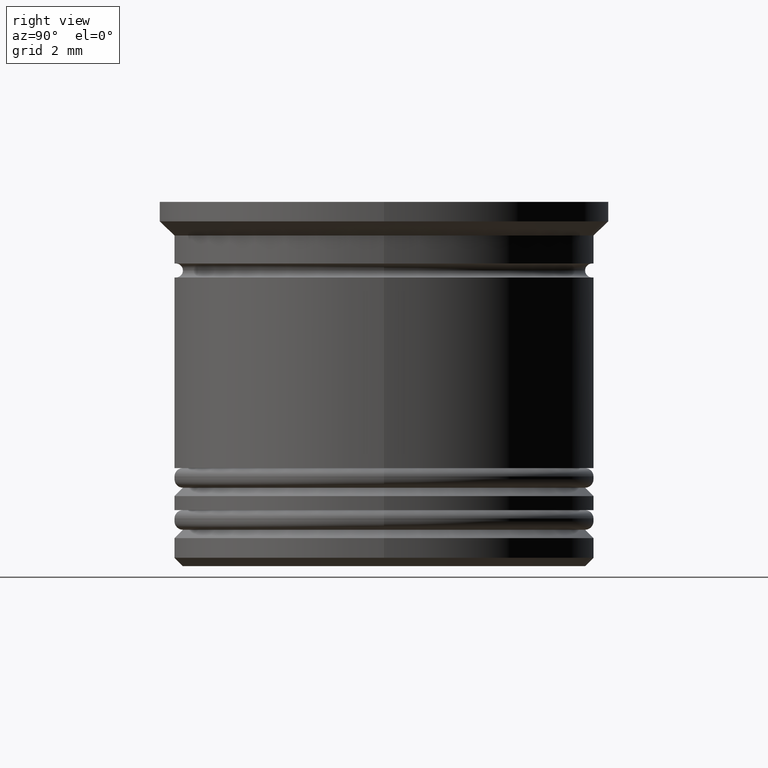
[diagram: clean part render]
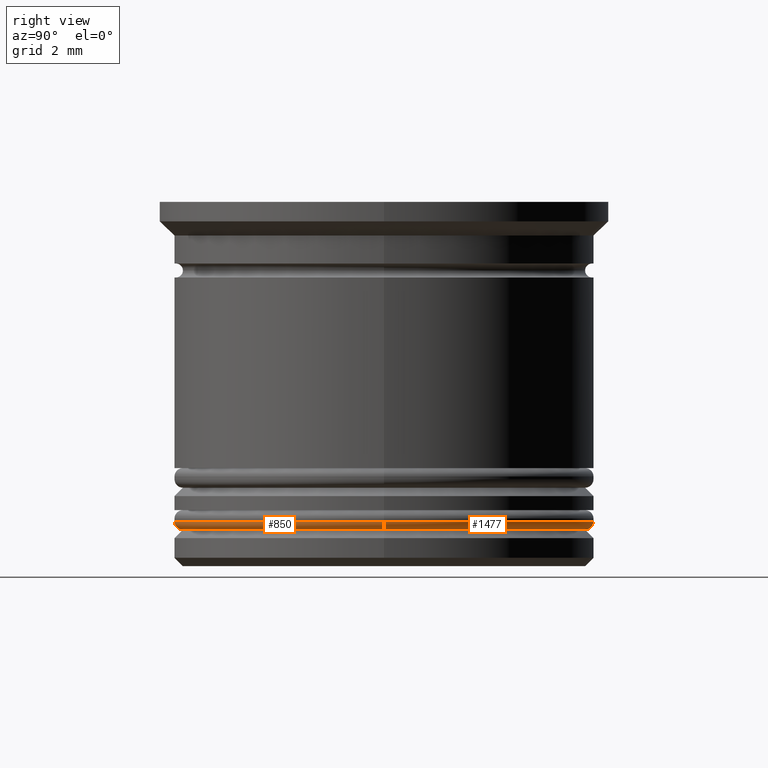
[diagram: same view with one multi-face feature highlighted, each face labeled with its STEP entity id]
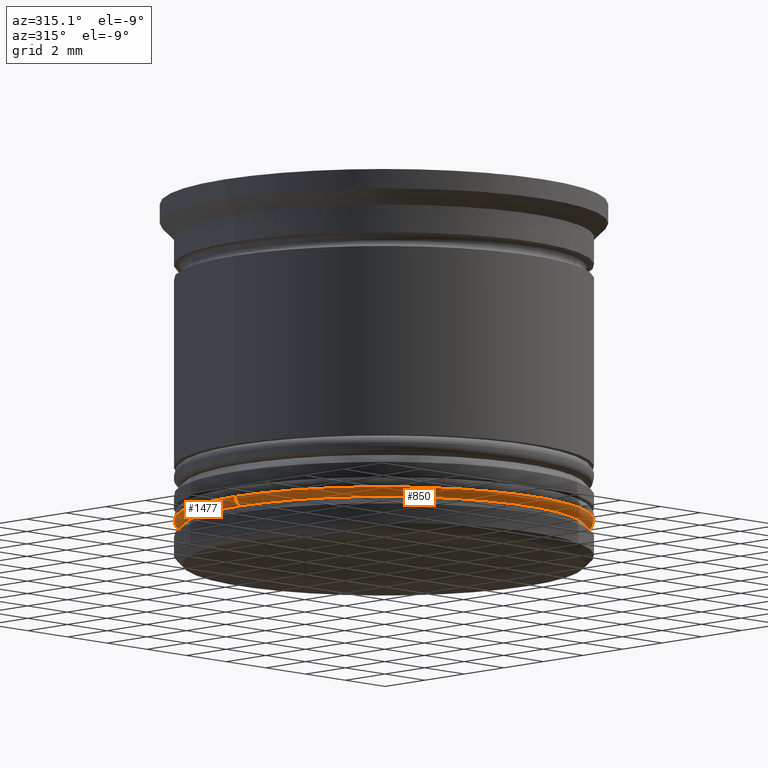
[diagram: same view with one multi-face feature highlighted, each face labeled with its STEP entity id]
A machine part, right view. The highlighted faces form ONE feature: a constant-radius fillet chain: 2 tangent blend faces with common blend radius 0.3 mm. The faces share edges in the B-rep.
A second angle (auxiliary view) of the same feature is appended — it is thin or edge-on in the first view.
Their STEP definitions:
[1] entity #850 (Torus):
#55 = CARTESIAN_POINT ( 'NONE',  ( 0.000000000000000000, 0.000000000000000000, -11.70000000000000462 ) ) ;
#61 = CARTESIAN_POINT ( 'NONE',  ( -7.200000000000001954, 8.817456953860946247E-16, -11.40000000000000391 ) ) ;
#168 = TOROIDAL_SURFACE ( 'NONE', #603, 7.200000000000001954, 0.2999999999999999889 ) ;
#398 = CARTESIAN_POINT ( 'NONE',  ( 7.200000000000001954, 0.000000000000000000, -11.70000000000000462 ) ) ;
#425 = DIRECTION ( 'NONE',  ( 0.000000000000000000, 0.000000000000000000, -1.000000000000000000 ) ) ;
#431 = CARTESIAN_POINT ( 'NONE',  ( 0.000000000000000000, 0.000000000000000000, -11.40000000000000391 ) ) ;
#470 = EDGE_CURVE ( 'NONE', #1738, #749, #1353, .T. ) ;
#508 = DIRECTION ( 'NONE',  ( -0.000000000000000000, -0.000000000000000000, -1.000000000000000000 ) ) ;
#554 = VERTEX_POINT ( 'NONE', #847 ) ;
#603 = AXIS2_PLACEMENT_3D ( 'NONE', #1043, #1659, #837 ) ;
#635 = AXIS2_PLACEMENT_3D ( 'NONE', #858, #1053, #425 ) ;
#679 = EDGE_LOOP ( 'NONE', ( #1794, #1521, #1863, #852 ) ) ;
#715 = EDGE_CURVE ( 'NONE', #841, #554, #1322, .T. ) ;
#749 = VERTEX_POINT ( 'NONE', #1128 ) ;
#804 = DIRECTION ( 'NONE',  ( -1.000000000000000000, 1.224646799147353207E-16, 0.000000000000000000 ) ) ;
#820 = DIRECTION ( 'NONE',  ( 1.000000000000000000, 0.000000000000000000, 0.000000000000000000 ) ) ;
#837 = DIRECTION ( 'NONE',  ( 1.000000000000000000, 0.000000000000000000, 0.000000000000000000 ) ) ;
#841 = VERTEX_POINT ( 'NONE', #891 ) ;
#847 = CARTESIAN_POINT ( 'NONE',  ( -7.500000000000001776, 9.184850993605149917E-16, -11.40000000000000391 ) ) ;
#850 = ADVANCED_FACE ( 'NONE', ( #1020 ), #168, .T. ) ;
#852 = ORIENTED_EDGE ( 'NONE', *, *, #1287, .F. ) ;
#858 = CARTESIAN_POINT ( 'NONE',  ( 7.200000000000001954, 0.000000000000000000, -11.40000000000000391 ) ) ;
#891 = CARTESIAN_POINT ( 'NONE',  ( -7.200000000000001954, 9.001153973733047589E-16, -11.70000000000000462 ) ) ;
#903 = EDGE_CURVE ( 'NONE', #1738, #841, #1799, .T. ) ;
#1020 = FACE_OUTER_BOUND ( 'NONE', #679, .T. ) ;
#1043 = CARTESIAN_POINT ( 'NONE',  ( 0.000000000000000000, 0.000000000000000000, -11.40000000000000391 ) ) ;
#1053 = DIRECTION ( 'NONE',  ( 0.000000000000000000, -1.000000000000000000, 0.000000000000000000 ) ) ;
#1068 = DIRECTION ( 'NONE',  ( 0.000000000000000000, 0.000000000000000000, 1.000000000000000000 ) ) ;
#1128 = CARTESIAN_POINT ( 'NONE',  ( 7.500000000000001776, 0.000000000000000000, -11.40000000000000391 ) ) ;
#1155 = DIRECTION ( 'NONE',  ( 1.224646799147353207E-16, 1.000000000000000000, -0.000000000000000000 ) ) ;
#1232 = AXIS2_PLACEMENT_3D ( 'NONE', #61, #1155, #804 ) ;
#1235 = CIRCLE ( 'NONE', #1260, 7.500000000000001776 ) ;
#1260 = AXIS2_PLACEMENT_3D ( 'NONE', #431, #1068, #1686 ) ;
#1287 = EDGE_CURVE ( 'NONE', #554, #749, #1235, .T. ) ;
#1322 = CIRCLE ( 'NONE', #1232, 0.2999999999999999334 ) ;
#1353 = CIRCLE ( 'NONE', #635, 0.2999999999999999334 ) ;
#1521 = ORIENTED_EDGE ( 'NONE', *, *, #903, .F. ) ;
#1659 = DIRECTION ( 'NONE',  ( 0.000000000000000000, 0.000000000000000000, 1.000000000000000000 ) ) ;
#1686 = DIRECTION ( 'NONE',  ( 1.000000000000000000, 0.000000000000000000, 0.000000000000000000 ) ) ;
#1705 = AXIS2_PLACEMENT_3D ( 'NONE', #55, #508, #820 ) ;
#1738 = VERTEX_POINT ( 'NONE', #398 ) ;
#1794 = ORIENTED_EDGE ( 'NONE', *, *, #715, .F. ) ;
#1799 = CIRCLE ( 'NONE', #1705, 7.200000000000001954 ) ;
#1863 = ORIENTED_EDGE ( 'NONE', *, *, #470, .T. ) ;
[2] entity #1477 (Torus):
#61 = CARTESIAN_POINT ( 'NONE',  ( -7.200000000000001954, 8.817456953860946247E-16, -11.40000000000000391 ) ) ;
#113 = AXIS2_PLACEMENT_3D ( 'NONE', #1323, #1874, #1908 ) ;
#220 = DIRECTION ( 'NONE',  ( 0.000000000000000000, 0.000000000000000000, 1.000000000000000000 ) ) ;
#350 = ORIENTED_EDGE ( 'NONE', *, *, #1864, .F. ) ;
#398 = CARTESIAN_POINT ( 'NONE',  ( 7.200000000000001954, 0.000000000000000000, -11.70000000000000462 ) ) ;
#425 = DIRECTION ( 'NONE',  ( 0.000000000000000000, 0.000000000000000000, -1.000000000000000000 ) ) ;
#440 = DIRECTION ( 'NONE',  ( 0.000000000000000000, 0.000000000000000000, 1.000000000000000000 ) ) ;
#468 = AXIS2_PLACEMENT_3D ( 'NONE', #1442, #220, #1148 ) ;
#470 = EDGE_CURVE ( 'NONE', #1738, #749, #1353, .T. ) ;
#554 = VERTEX_POINT ( 'NONE', #847 ) ;
#559 = EDGE_CURVE ( 'NONE', #749, #554, #1860, .T. ) ;
#635 = AXIS2_PLACEMENT_3D ( 'NONE', #858, #1053, #425 ) ;
#715 = EDGE_CURVE ( 'NONE', #841, #554, #1322, .T. ) ;
#749 = VERTEX_POINT ( 'NONE', #1128 ) ;
#773 = DIRECTION ( 'NONE',  ( 1.000000000000000000, 0.000000000000000000, 0.000000000000000000 ) ) ;
#804 = DIRECTION ( 'NONE',  ( -1.000000000000000000, 1.224646799147353207E-16, 0.000000000000000000 ) ) ;
#841 = VERTEX_POINT ( 'NONE', #891 ) ;
#847 = CARTESIAN_POINT ( 'NONE',  ( -7.500000000000001776, 9.184850993605149917E-16, -11.40000000000000391 ) ) ;
#858 = CARTESIAN_POINT ( 'NONE',  ( 7.200000000000001954, 0.000000000000000000, -11.40000000000000391 ) ) ;
#891 = CARTESIAN_POINT ( 'NONE',  ( -7.200000000000001954, 9.001153973733047589E-16, -11.70000000000000462 ) ) ;
#986 = EDGE_LOOP ( 'NONE', ( #350, #1421, #1444, #1147 ) ) ;
#1002 = CIRCLE ( 'NONE', #113, 7.200000000000001954 ) ;
#1053 = DIRECTION ( 'NONE',  ( 0.000000000000000000, -1.000000000000000000, 0.000000000000000000 ) ) ;
#1086 = CARTESIAN_POINT ( 'NONE',  ( 0.000000000000000000, 0.000000000000000000, -11.40000000000000391 ) ) ;
#1128 = CARTESIAN_POINT ( 'NONE',  ( 7.500000000000001776, 0.000000000000000000, -11.40000000000000391 ) ) ;
#1147 = ORIENTED_EDGE ( 'NONE', *, *, #470, .F. ) ;
#1148 = DIRECTION ( 'NONE',  ( 1.000000000000000000, 0.000000000000000000, 0.000000000000000000 ) ) ;
#1155 = DIRECTION ( 'NONE',  ( 1.224646799147353207E-16, 1.000000000000000000, -0.000000000000000000 ) ) ;
#1169 = TOROIDAL_SURFACE ( 'NONE', #468, 7.200000000000001954, 0.2999999999999999889 ) ;
#1232 = AXIS2_PLACEMENT_3D ( 'NONE', #61, #1155, #804 ) ;
#1322 = CIRCLE ( 'NONE', #1232, 0.2999999999999999334 ) ;
#1323 = CARTESIAN_POINT ( 'NONE',  ( 0.000000000000000000, 0.000000000000000000, -11.70000000000000462 ) ) ;
#1353 = CIRCLE ( 'NONE', #635, 0.2999999999999999334 ) ;
#1421 = ORIENTED_EDGE ( 'NONE', *, *, #715, .T. ) ;
#1442 = CARTESIAN_POINT ( 'NONE',  ( 0.000000000000000000, 0.000000000000000000, -11.40000000000000391 ) ) ;
#1444 = ORIENTED_EDGE ( 'NONE', *, *, #559, .F. ) ;
#1477 = ADVANCED_FACE ( 'NONE', ( #1594 ), #1169, .T. ) ;
#1594 = FACE_OUTER_BOUND ( 'NONE', #986, .T. ) ;
#1738 = VERTEX_POINT ( 'NONE', #398 ) ;
#1860 = CIRCLE ( 'NONE', #1925, 7.500000000000001776 ) ;
#1864 = EDGE_CURVE ( 'NONE', #841, #1738, #1002, .T. ) ;
#1874 = DIRECTION ( 'NONE',  ( -0.000000000000000000, -0.000000000000000000, -1.000000000000000000 ) ) ;
#1908 = DIRECTION ( 'NONE',  ( 1.000000000000000000, 0.000000000000000000, 0.000000000000000000 ) ) ;
#1925 = AXIS2_PLACEMENT_3D ( 'NONE', #1086, #440, #773 ) ;